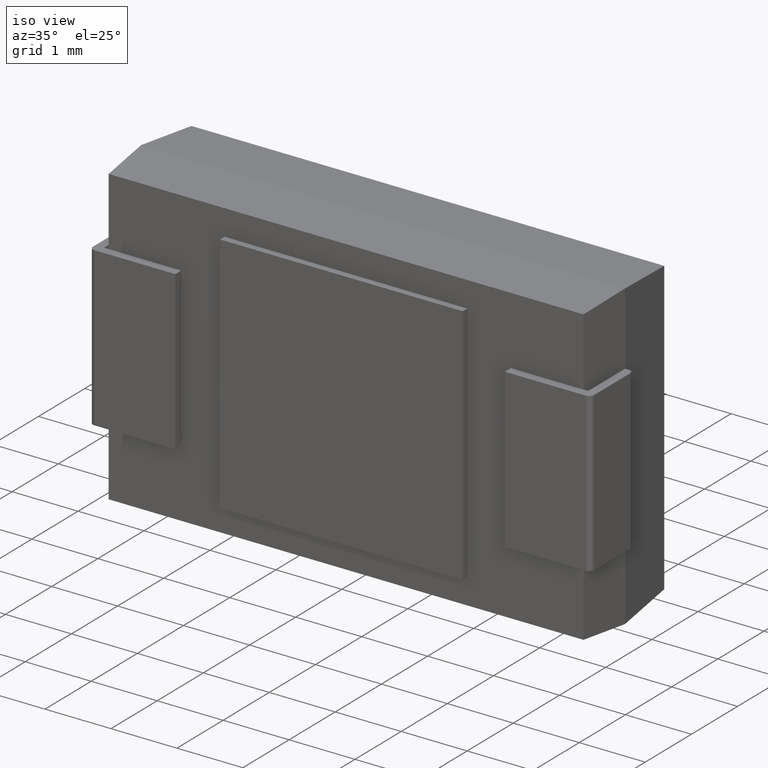
[diagram: clean part render]
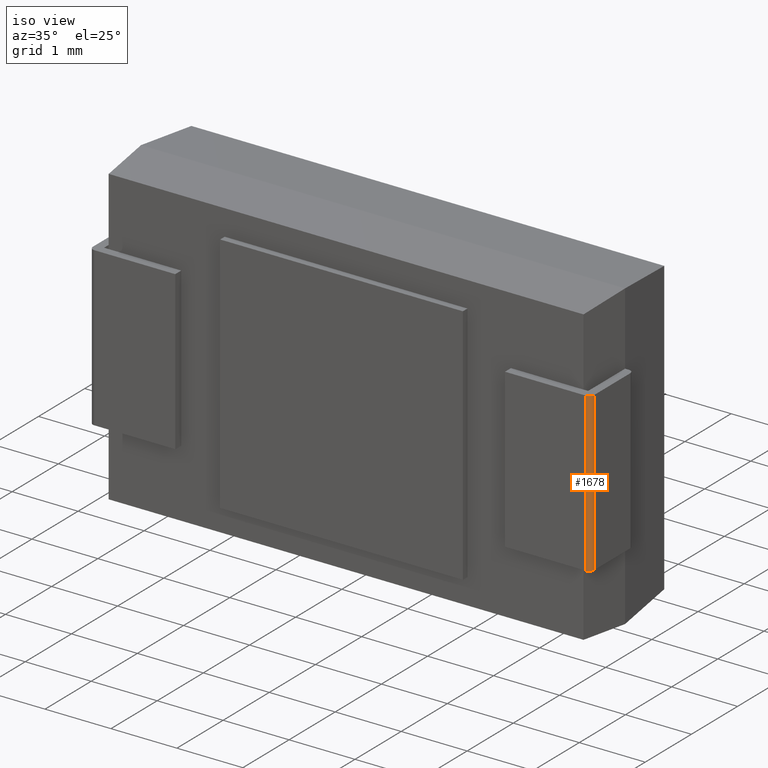
[diagram: same view with one face highlighted and labeled with its STEP entity id]
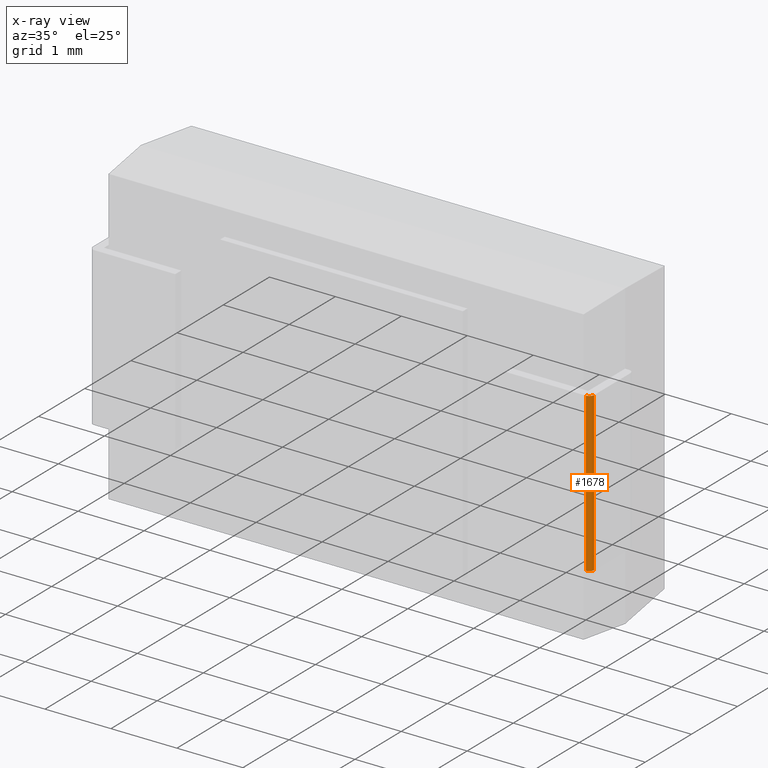
[diagram: x-ray of the same camera — body ghosted, the highlighted face saturated]
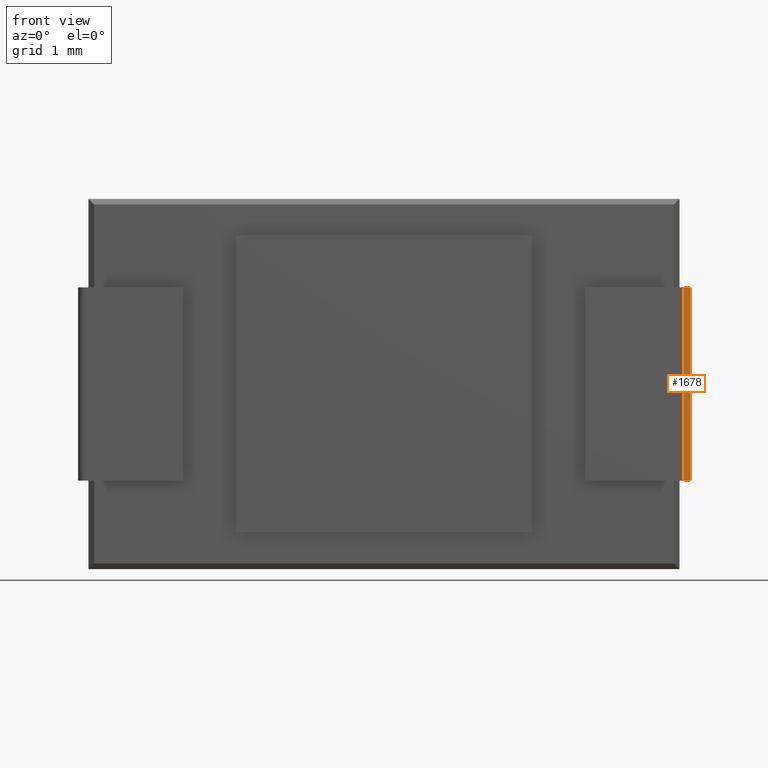
[diagram: same view with one face highlighted and labeled with its STEP entity id]
A machine part, iso view. The second image highlights one B-rep face of the part: STEP entity #1678.
The next image is the same camera in x-ray: the body ghosted, the highlighted face saturated — about 0% of this face is hidden behind the body in this view.
A second angle (front view) of the same face is appended — the face is thin or edge-on in the first view.
In plain terms, the highlighted cylindrical surface (edge-blend (fillet) strip) has radius 0.075 mm, axis along (0, 0, 1).
Its self-contained STEP definition (entity closure, byte-faithful):
#62 = LINE ( 'NONE', #2846, #1530 ) ;
#186 = DIRECTION ( 'NONE',  ( -1.807003620809174600E-016, -0.0000000000000000000, -1.000000000000000000 ) ) ;
#209 = VERTEX_POINT ( 'NONE', #2217 ) ;
#373 = EDGE_CURVE ( 'NONE', #209, #1234, #2498, .T. ) ;
#443 = AXIS2_PLACEMENT_3D ( 'NONE', #1243, #1827, #1543 ) ;
#470 = DIRECTION ( 'NONE',  ( 1.807003620809174600E-016, 0.0000000000000000000, 1.000000000000000000 ) ) ;
#878 = DIRECTION ( 'NONE',  ( -0.0000000000000000000, -0.0000000000000000000, 1.000000000000000000 ) ) ;
#1040 = VERTEX_POINT ( 'NONE', #1130 ) ;
#1105 = EDGE_LOOP ( 'NONE', ( #3639, #2915, #1419, #2625 ) ) ;
#1130 = CARTESIAN_POINT ( 'NONE',  ( 0.0000000000000000000, 0.07499999999999998300, 0.0000000000000000000 ) ) ;
#1193 = FACE_OUTER_BOUND ( 'NONE', #1105, .T. ) ;
#1234 = VERTEX_POINT ( 'NONE', #1416 ) ;
#1243 = CARTESIAN_POINT ( 'NONE',  ( 0.07499999999999999700, 0.07499999999999998300, -1.355252715606880900E-017 ) ) ;
#1284 = DIRECTION ( 'NONE',  ( -3.336006684570783600E-016, 0.0000000000000000000, -1.000000000000000000 ) ) ;
#1324 = CARTESIAN_POINT ( 'NONE',  ( 0.07499999999999955300, 0.07499999999999998300, -2.399999999999999500 ) ) ;
#1416 = CARTESIAN_POINT ( 'NONE',  ( 0.07499999999999955300, 0.0000000000000000000, -2.399999999999999500 ) ) ;
#1419 = ORIENTED_EDGE ( 'NONE', *, *, #3768, .F. ) ;
#1530 = VECTOR ( 'NONE', #470, 1000.000000000000000 ) ;
#1538 = CARTESIAN_POINT ( 'NONE',  ( -4.336808689942017700E-016, 0.07499999999999998300, -2.399999999999999500 ) ) ;
#1543 = DIRECTION ( 'NONE',  ( -1.000000000000000000, 0.0000000000000000000, 1.807003620809174600E-016 ) ) ;
#1574 = CIRCLE ( 'NONE', #3843, 0.07499999999999999700 ) ;
#1678 = ADVANCED_FACE ( 'NONE', ( #1193 ), #2073, .T. ) ;
#1800 = EDGE_CURVE ( 'NONE', #1234, #3828, #2961, .T. ) ;
#1827 = DIRECTION ( 'NONE',  ( -1.807003620809174600E-016, 0.0000000000000000000, -1.000000000000000000 ) ) ;
#1979 = CARTESIAN_POINT ( 'NONE',  ( 0.07499999999999955300, 0.0000000000000000000, -2.399999999999999500 ) ) ;
#2073 = CYLINDRICAL_SURFACE ( 'NONE', #443, 0.07499999999999999700 ) ;
#2217 = CARTESIAN_POINT ( 'NONE',  ( 0.07499999999999999700, 0.0000000000000000000, 0.0000000000000000000 ) ) ;
#2498 = LINE ( 'NONE', #1979, #2847 ) ;
#2625 = ORIENTED_EDGE ( 'NONE', *, *, #3622, .F. ) ;
#2846 = CARTESIAN_POINT ( 'NONE',  ( 0.0000000000000000000, 0.07499999999999998300, 0.0000000000000000000 ) ) ;
#2847 = VECTOR ( 'NONE', #186, 1000.000000000000000 ) ;
#2915 = ORIENTED_EDGE ( 'NONE', *, *, #373, .F. ) ;
#2961 = CIRCLE ( 'NONE', #3373, 0.07499999999999999700 ) ;
#2975 = DIRECTION ( 'NONE',  ( -1.000000000000000000, 0.0000000000000000000, 0.0000000000000000000 ) ) ;
#3095 = DIRECTION ( 'NONE',  ( 1.000000000000000000, 0.0000000000000000000, 0.0000000000000000000 ) ) ;
#3316 = CARTESIAN_POINT ( 'NONE',  ( 0.07499999999999999700, 0.07499999999999998300, 0.0000000000000000000 ) ) ;
#3373 = AXIS2_PLACEMENT_3D ( 'NONE', #1324, #1284, #3095 ) ;
#3622 = EDGE_CURVE ( 'NONE', #3828, #1040, #62, .T. ) ;
#3639 = ORIENTED_EDGE ( 'NONE', *, *, #1800, .F. ) ;
#3768 = EDGE_CURVE ( 'NONE', #1040, #209, #1574, .T. ) ;
#3828 = VERTEX_POINT ( 'NONE', #1538 ) ;
#3843 = AXIS2_PLACEMENT_3D ( 'NONE', #3316, #878, #2975 ) ;